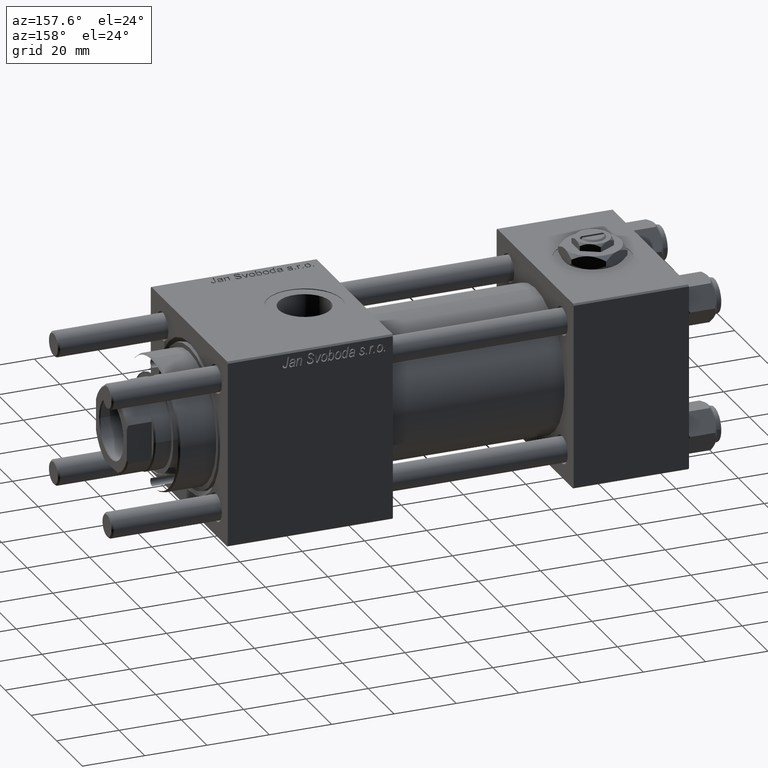
[diagram: clean part render]
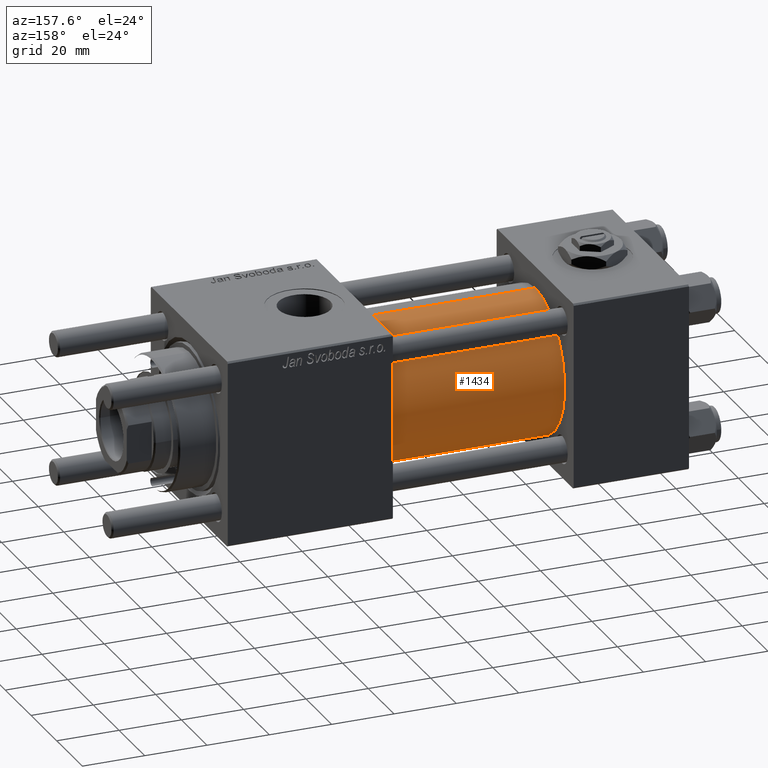
[diagram: same view with one face highlighted and labeled with its STEP entity id]
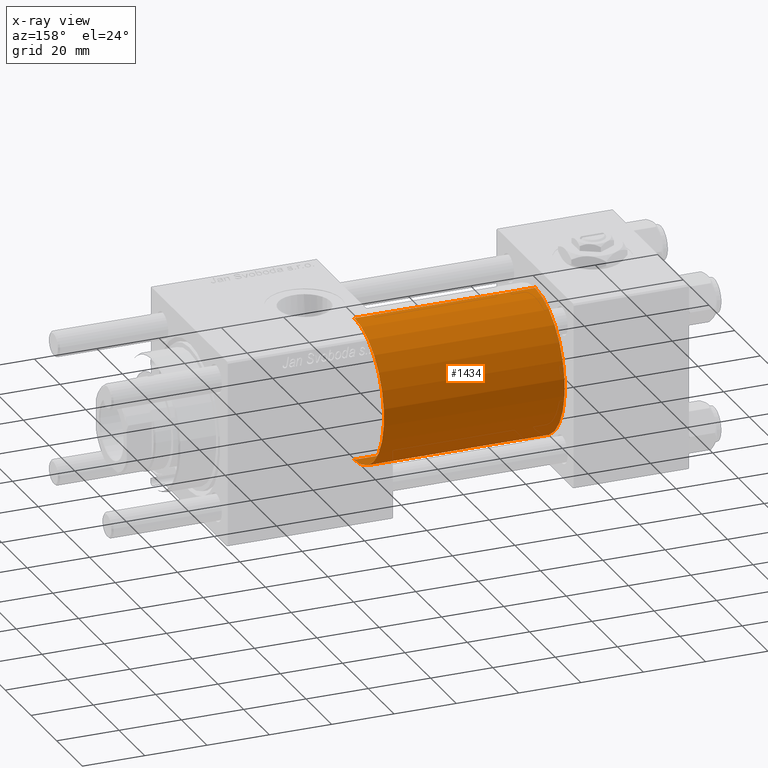
[diagram: x-ray of the same camera — body ghosted, the highlighted face saturated]
A machine part, auxiliary view. The second image highlights one B-rep face of the part: STEP entity #1434.
The next image is the same camera in x-ray: the body ghosted, the highlighted face saturated — about 0% of this face is hidden behind the body in this view.
In plain terms, the highlighted cylindrical surface (partial cylindrical patch) has radius 23 mm, axis along (-1, -0, -0).
Its self-contained STEP definition (entity closure, byte-faithful):
#1434 = ADVANCED_FACE ( 'NONE', ( #58023 ), #8186, .T. ) ;
#2470 = DIRECTION ( 'NONE',  ( 0.000000000000000000, 0.000000000000000000, -1.000000000000000000 ) ) ;
#8186 = CYLINDRICAL_SURFACE ( 'NONE', #18070, 23.00000000000000000 ) ;
#8325 = CARTESIAN_POINT ( 'NONE',  ( 37.00000000000000000, -2.602085213965210642E-15, 0.000000000000000000 ) ) ;
#11068 = VERTEX_POINT ( 'NONE', #20318 ) ;
#11168 = DIRECTION ( 'NONE',  ( -1.000000000000000000, -0.000000000000000000, -0.000000000000000000 ) ) ;
#14089 = EDGE_CURVE ( 'NONE', #43882, #45001, #51046, .T. ) ;
#17149 = CARTESIAN_POINT ( 'NONE',  ( 95.00000000000000000, -2.602085213965210642E-15, 0.000000000000000000 ) ) ;
#18070 = AXIS2_PLACEMENT_3D ( 'NONE', #17149, #44607, #56874 ) ;
#20318 = CARTESIAN_POINT ( 'NONE',  ( 37.00000000000000000, 2.146024240737012665E-16, -23.00000000000000000 ) ) ;
#20837 = ORIENTED_EDGE ( 'NONE', *, *, #14089, .F. ) ;
#21827 = CIRCLE ( 'NONE', #28507, 23.00000000000000000 ) ;
#24896 = CARTESIAN_POINT ( 'NONE',  ( 95.00000000000000000, -2.602085213965210642E-15, 23.00000000000000000 ) ) ;
#28507 = AXIS2_PLACEMENT_3D ( 'NONE', #8325, #44751, #53981 ) ;
#28525 = EDGE_CURVE ( 'NONE', #11068, #46192, #21827, .T. ) ;
#28699 = EDGE_LOOP ( 'NONE', ( #20837, #54000, #43925, #36361 ) ) ;
#29936 = CARTESIAN_POINT ( 'NONE',  ( 95.00000000000000000, -2.602085213965210642E-15, 0.000000000000000000 ) ) ;
#31442 = VECTOR ( 'NONE', #11168, 1000.000000000000000 ) ;
#34860 = AXIS2_PLACEMENT_3D ( 'NONE', #29936, #42799, #2470 ) ;
#36361 = ORIENTED_EDGE ( 'NONE', *, *, #44017, .F. ) ;
#37628 = CARTESIAN_POINT ( 'NONE',  ( 37.00000000000000000, -2.602085213965210642E-15, 23.00000000000000000 ) ) ;
#38204 = VECTOR ( 'NONE', #43930, 1000.000000000000000 ) ;
#42799 = DIRECTION ( 'NONE',  ( 1.000000000000000000, 0.000000000000000000, 0.000000000000000000 ) ) ;
#43882 = VERTEX_POINT ( 'NONE', #53843 ) ;
#43925 = ORIENTED_EDGE ( 'NONE', *, *, #28525, .T. ) ;
#43930 = DIRECTION ( 'NONE',  ( -1.000000000000000000, -0.000000000000000000, -0.000000000000000000 ) ) ;
#44017 = EDGE_CURVE ( 'NONE', #45001, #46192, #51456, .T. ) ;
#44607 = DIRECTION ( 'NONE',  ( -1.000000000000000000, -0.000000000000000000, -0.000000000000000000 ) ) ;
#44751 = DIRECTION ( 'NONE',  ( 1.000000000000000000, -0.000000000000000000, 0.000000000000000000 ) ) ;
#45001 = VERTEX_POINT ( 'NONE', #55867 ) ;
#45843 = EDGE_CURVE ( 'NONE', #43882, #11068, #52860, .T. ) ;
#46192 = VERTEX_POINT ( 'NONE', #37628 ) ;
#47532 = CARTESIAN_POINT ( 'NONE',  ( 95.00000000000000000, 2.146024240737012665E-16, -23.00000000000000000 ) ) ;
#51046 = CIRCLE ( 'NONE', #34860, 23.00000000000000000 ) ;
#51456 = LINE ( 'NONE', #24896, #31442 ) ;
#52860 = LINE ( 'NONE', #47532, #38204 ) ;
#53843 = CARTESIAN_POINT ( 'NONE',  ( 95.00000000000000000, 2.146024240737012665E-16, -23.00000000000000000 ) ) ;
#53981 = DIRECTION ( 'NONE',  ( 0.000000000000000000, 0.000000000000000000, 1.000000000000000000 ) ) ;
#54000 = ORIENTED_EDGE ( 'NONE', *, *, #45843, .T. ) ;
#55867 = CARTESIAN_POINT ( 'NONE',  ( 95.00000000000000000, -2.602085213965210642E-15, 23.00000000000000000 ) ) ;
#56874 = DIRECTION ( 'NONE',  ( 0.000000000000000000, 0.000000000000000000, 1.000000000000000000 ) ) ;
#58023 = FACE_OUTER_BOUND ( 'NONE', #28699, .T. ) ;